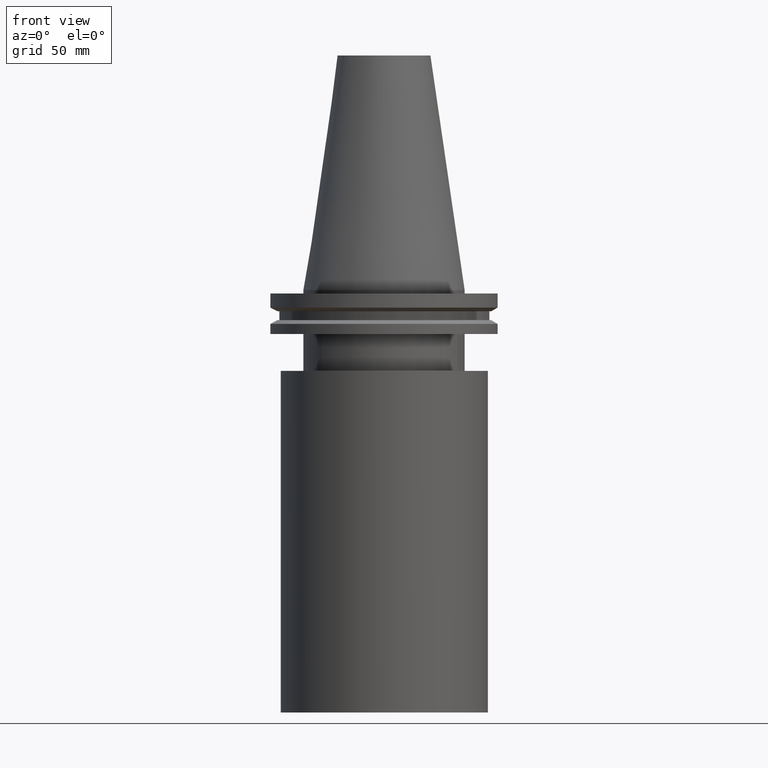
[diagram: clean part render]
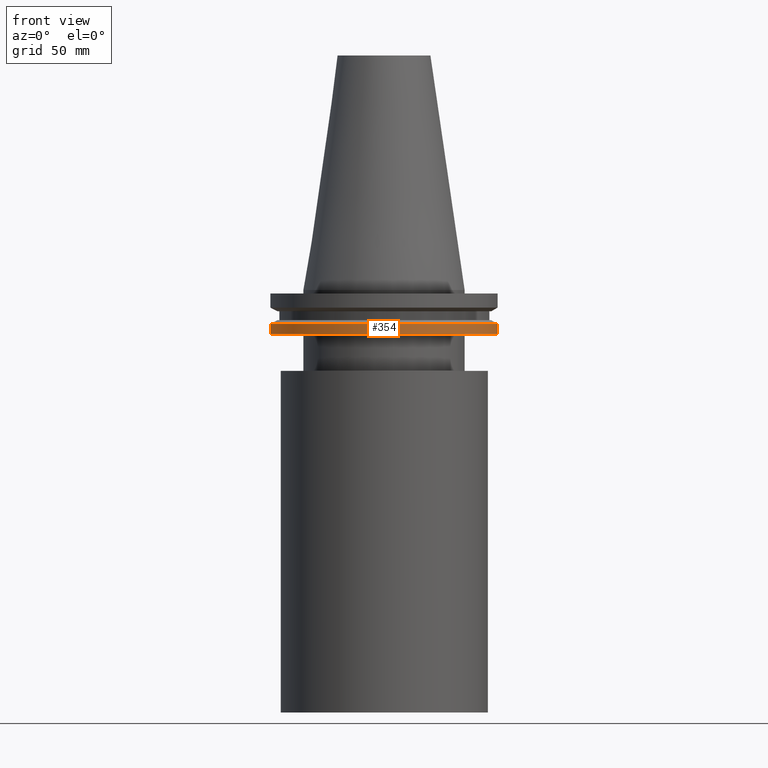
[diagram: same view with one face highlighted and labeled with its STEP entity id]
A machine part, front view. The second image highlights one B-rep face of the part: STEP entity #354.
In plain terms, the highlighted cylindrical surface (bore or boss wall) has radius 49.215 mm, axis along (-0, -0, 1).
Its self-contained STEP definition (entity closure, byte-faithful):
#1 = ORIENTED_EDGE ( 'NONE', *, *, #137, .T. ) ;
#8 = VERTEX_POINT ( 'NONE', #158 ) ;
#57 = EDGE_LOOP ( 'NONE', ( #183 ) ) ;
#90 = DIRECTION ( 'NONE',  ( -0.000000000000000000, -0.000000000000000000, 1.000000000000000000 ) ) ;
#95 = EDGE_LOOP ( 'NONE', ( #1 ) ) ;
#110 = CYLINDRICAL_SURFACE ( 'NONE', #150, 49.21499999999998920 ) ;
#116 = DIRECTION ( 'NONE',  ( -0.000000000000000000, -0.000000000000000000, 1.000000000000000000 ) ) ;
#137 = EDGE_CURVE ( 'NONE', #184, #184, #249, .T. ) ;
#139 = DIRECTION ( 'NONE',  ( 1.000000000000000000, 0.000000000000000000, 0.000000000000000000 ) ) ;
#150 = AXIS2_PLACEMENT_3D ( 'NONE', #204, #90, #349 ) ;
#158 = CARTESIAN_POINT ( 'NONE',  ( 49.21499999999998920, 0.000000000000000000, -14.65761014474876944 ) ) ;
#179 = CARTESIAN_POINT ( 'NONE',  ( 0.000000000000000000, 0.000000000000000000, -14.65761014474876944 ) ) ;
#183 = ORIENTED_EDGE ( 'NONE', *, *, #311, .F. ) ;
#184 = VERTEX_POINT ( 'NONE', #365 ) ;
#193 = AXIS2_PLACEMENT_3D ( 'NONE', #179, #116, #207 ) ;
#204 = CARTESIAN_POINT ( 'NONE',  ( 0.000000000000000000, 0.000000000000000000, 101.5999999999999943 ) ) ;
#207 = DIRECTION ( 'NONE',  ( 1.000000000000000000, 0.000000000000000000, 0.000000000000000000 ) ) ;
#221 = CARTESIAN_POINT ( 'NONE',  ( 0.000000000000000000, 0.000000000000000000, -19.04999999999999716 ) ) ;
#235 = AXIS2_PLACEMENT_3D ( 'NONE', #221, #287, #139 ) ;
#244 = CIRCLE ( 'NONE', #193, 49.21499999999998920 ) ;
#249 = CIRCLE ( 'NONE', #235, 49.21499999999998920 ) ;
#264 = FACE_OUTER_BOUND ( 'NONE', #57, .T. ) ;
#287 = DIRECTION ( 'NONE',  ( -0.000000000000000000, -0.000000000000000000, 1.000000000000000000 ) ) ;
#295 = FACE_OUTER_BOUND ( 'NONE', #95, .T. ) ;
#311 = EDGE_CURVE ( 'NONE', #8, #8, #244, .T. ) ;
#349 = DIRECTION ( 'NONE',  ( 1.000000000000000000, 0.000000000000000000, 0.000000000000000000 ) ) ;
#354 = ADVANCED_FACE ( 'NONE', ( #264, #295 ), #110, .T. ) ;
#365 = CARTESIAN_POINT ( 'NONE',  ( 49.21499999999998920, 0.000000000000000000, -19.04999999999999716 ) ) ;